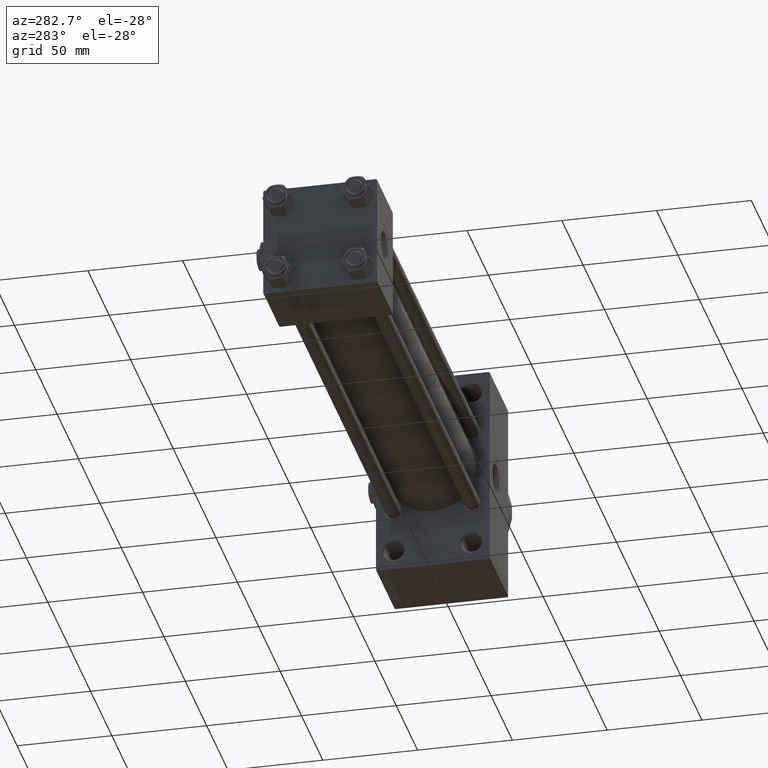
[diagram: clean part render]
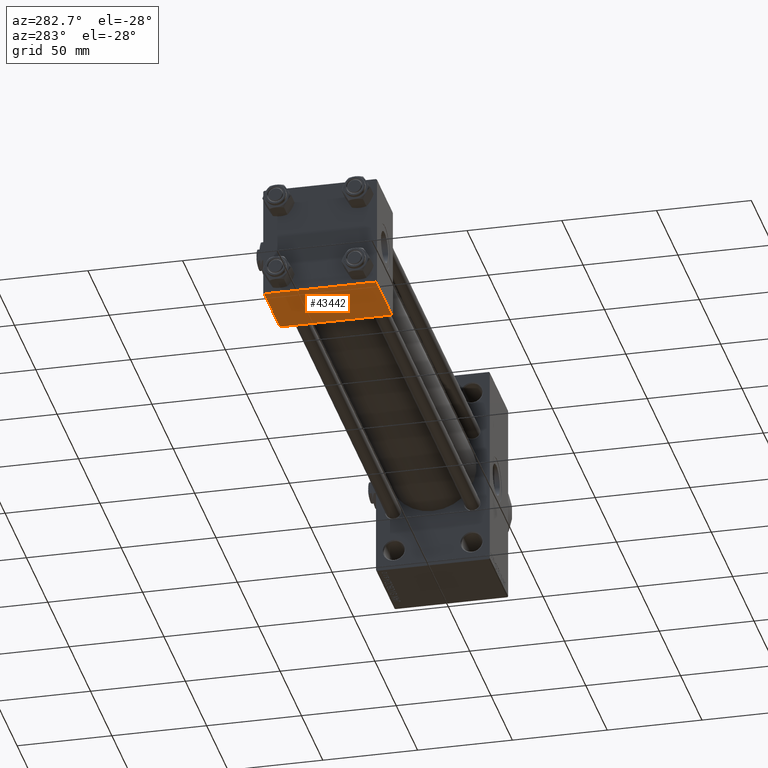
[diagram: same view with one face highlighted and labeled with its STEP entity id]
A machine part, auxiliary view. The second image highlights one B-rep face of the part: STEP entity #43442.
In plain terms, the highlighted planar face has unit normal (0, 0, -1).
Its self-contained STEP definition (entity closure, byte-faithful):
#1232 = CARTESIAN_POINT ( 'NONE',  ( 0.000000000000000000, 29.49999999999997868, -30.00000000000000000 ) ) ;
#2792 = LINE ( 'NONE', #18018, #32636 ) ;
#3475 = DIRECTION ( 'NONE',  ( 0.000000000000000000, 1.000000000000000000, 1.156482317317871725E-16 ) ) ;
#4264 = CARTESIAN_POINT ( 'NONE',  ( 37.00000000000000000, -29.50000000000000000, -30.00000000000000711 ) ) ;
#5799 = CARTESIAN_POINT ( 'NONE',  ( 0.000000000000000000, -29.50000000000000000, -30.00000000000000711 ) ) ;
#7279 = LINE ( 'NONE', #37713, #37553 ) ;
#9246 = EDGE_CURVE ( 'NONE', #14611, #26615, #42954, .T. ) ;
#10689 = EDGE_LOOP ( 'NONE', ( #20875, #15195, #36379, #15692 ) ) ;
#13119 = VECTOR ( 'NONE', #47836, 1000.000000000000000 ) ;
#14611 = VERTEX_POINT ( 'NONE', #16278 ) ;
#15195 = ORIENTED_EDGE ( 'NONE', *, *, #30153, .T. ) ;
#15692 = ORIENTED_EDGE ( 'NONE', *, *, #37295, .T. ) ;
#16278 = CARTESIAN_POINT ( 'NONE',  ( 37.00000000000000000, 29.49999999999997868, -30.00000000000000000 ) ) ;
#17036 = DIRECTION ( 'NONE',  ( 0.000000000000000000, 1.156482317317871725E-16, -1.000000000000000000 ) ) ;
#17425 = CARTESIAN_POINT ( 'NONE',  ( 0.000000000000000000, -29.50000000000001066, -30.00000000000000711 ) ) ;
#18018 = CARTESIAN_POINT ( 'NONE',  ( 0.000000000000000000, 29.99999999999999289, -30.00000000000000000 ) ) ;
#19551 = DIRECTION ( 'NONE',  ( 0.000000000000000000, -1.000000000000000000, -1.156482317317871725E-16 ) ) ;
#20875 = ORIENTED_EDGE ( 'NONE', *, *, #25644, .F. ) ;
#22189 = FACE_OUTER_BOUND ( 'NONE', #10689, .T. ) ;
#25007 = CARTESIAN_POINT ( 'NONE',  ( 37.00000000000000000, 29.99999999999999289, -30.00000000000000000 ) ) ;
#25644 = EDGE_CURVE ( 'NONE', #38184, #26328, #2792, .T. ) ;
#26328 = VERTEX_POINT ( 'NONE', #5799 ) ;
#26467 = VECTOR ( 'NONE', #19551, 1000.000000000000000 ) ;
#26615 = VERTEX_POINT ( 'NONE', #4264 ) ;
#27530 = AXIS2_PLACEMENT_3D ( 'NONE', #25007, #17036, #3475 ) ;
#30153 = EDGE_CURVE ( 'NONE', #38184, #14611, #7279, .T. ) ;
#32636 = VECTOR ( 'NONE', #33215, 1000.000000000000000 ) ;
#33215 = DIRECTION ( 'NONE',  ( 0.000000000000000000, -1.000000000000000000, -1.156482317317871725E-16 ) ) ;
#34217 = DIRECTION ( 'NONE',  ( 1.000000000000000000, 0.000000000000000000, 0.000000000000000000 ) ) ;
#34769 = CARTESIAN_POINT ( 'NONE',  ( 37.00000000000000000, 29.99999999999999289, -30.00000000000000000 ) ) ;
#36379 = ORIENTED_EDGE ( 'NONE', *, *, #9246, .T. ) ;
#37295 = EDGE_CURVE ( 'NONE', #26615, #26328, #39383, .T. ) ;
#37553 = VECTOR ( 'NONE', #34217, 1000.000000000000000 ) ;
#37713 = CARTESIAN_POINT ( 'NONE',  ( 37.00000000000000000, 29.49999999999997868, -30.00000000000000000 ) ) ;
#38184 = VERTEX_POINT ( 'NONE', #1232 ) ;
#39383 = LINE ( 'NONE', #17425, #13119 ) ;
#41131 = PLANE ( 'NONE',  #27530 ) ;
#42954 = LINE ( 'NONE', #34769, #26467 ) ;
#43442 = ADVANCED_FACE ( 'NONE', ( #22189 ), #41131, .T. ) ;
#47836 = DIRECTION ( 'NONE',  ( -1.000000000000000000, 0.000000000000000000, 0.000000000000000000 ) ) ;